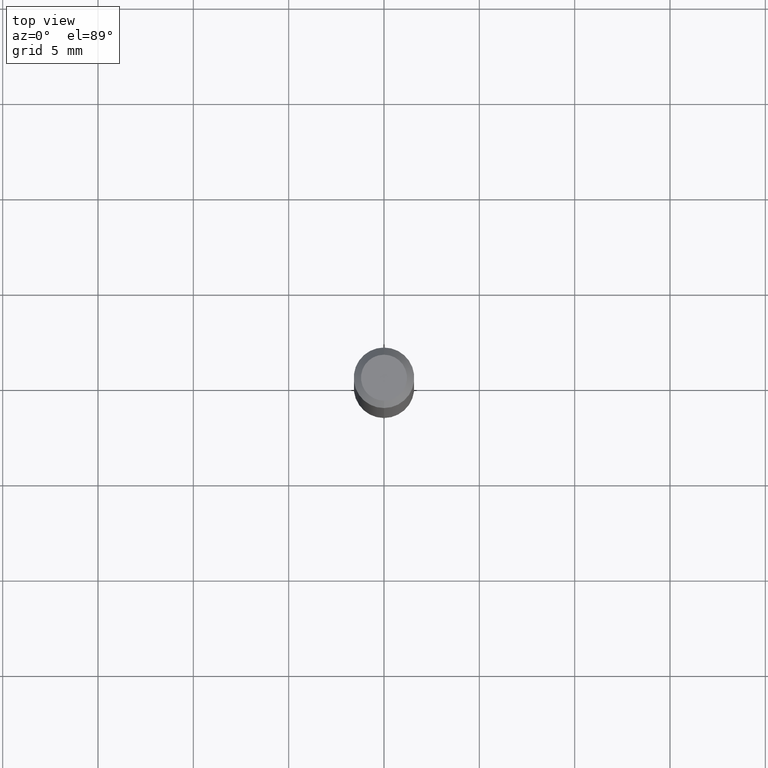
[diagram: clean part render]
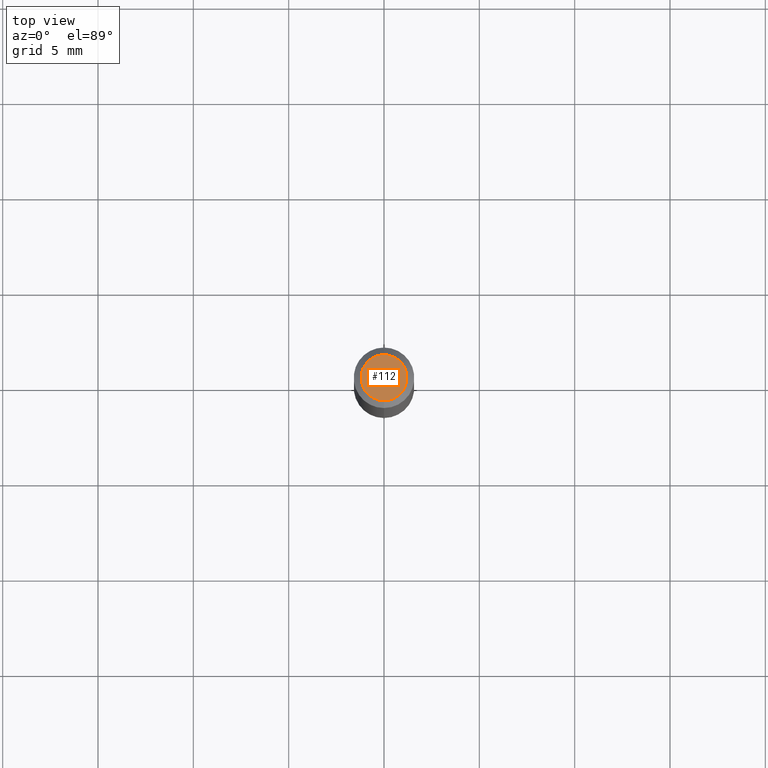
[diagram: same view with one face highlighted and labeled with its STEP entity id]
A machine part, top view. The second image highlights one B-rep face of the part: STEP entity #112.
In plain terms, the highlighted planar face has unit normal (0, -0, -1).
Its self-contained STEP definition (entity closure, byte-faithful):
#2 = ORIENTED_EDGE ( 'NONE', *, *, #459, .T. ) ;
#4 = DIRECTION ( 'NONE',  ( 6.982962677686265922E-15, 1.000000000000000000, -3.491477318471451219E-15 ) ) ;
#9 = ORIENTED_EDGE ( 'NONE', *, *, #59, .T. ) ;
#24 = DIRECTION ( 'NONE',  ( -2.445471613595686060E-29, 3.491477318471450825E-15, 1.000000000000000000 ) ) ;
#44 = CARTESIAN_POINT ( 'NONE',  ( 3.316907271900976096E-16, 0.04749999999999999362, -3.299187419673015324E-16 ) ) ;
#59 = EDGE_CURVE ( 'NONE', #313, #203, #90, .T. ) ;
#90 = CIRCLE ( 'NONE', #507, 0.04749999999999999362 ) ;
#112 = ADVANCED_FACE ( 'NONE', ( #243 ), #202, .F. ) ;
#123 = AXIS2_PLACEMENT_3D ( 'NONE', #44, #387, #4 ) ;
#135 = CARTESIAN_POINT ( 'NONE',  ( -3.773273898774340269E-16, -0.04749999999999999362, -1.623019660524213164E-16 ) ) ;
#140 = EDGE_LOOP ( 'NONE', ( #9, #2 ) ) ;
#148 = AXIS2_PLACEMENT_3D ( 'NONE', #262, #24, #490 ) ;
#202 = PLANE ( 'NONE',  #123 ) ;
#203 = VERTEX_POINT ( 'NONE', #135 ) ;
#240 = DIRECTION ( 'NONE',  ( -2.445471613595686060E-29, 3.491477318471450825E-15, 1.000000000000000000 ) ) ;
#243 = FACE_OUTER_BOUND ( 'NONE', #140, .T. ) ;
#262 = CARTESIAN_POINT ( 'NONE',  ( 8.024745127241350600E-45, -1.145718291821880628E-30, -3.281471386798151833E-16 ) ) ;
#313 = VERTEX_POINT ( 'NONE', #360 ) ;
#360 = CARTESIAN_POINT ( 'NONE',  ( 3.840629472727447874E-16, 0.04749999999999999362, -4.939923113072091241E-16 ) ) ;
#384 = CIRCLE ( 'NONE', #148, 0.04749999999999999362 ) ;
#387 = DIRECTION ( 'NONE',  ( 2.445471613595685500E-29, -3.491477318471451219E-15, -1.000000000000000000 ) ) ;
#423 = DIRECTION ( 'NONE',  ( -6.982962677686266711E-15, -1.000000000000000000, 3.491477318471450825E-15 ) ) ;
#434 = CARTESIAN_POINT ( 'NONE',  ( 8.024745127241350600E-45, -1.145718291821880628E-30, -3.281471386798151833E-16 ) ) ;
#459 = EDGE_CURVE ( 'NONE', #203, #313, #384, .T. ) ;
#490 = DIRECTION ( 'NONE',  ( -6.982962677686266711E-15, -1.000000000000000000, 3.491477318471450825E-15 ) ) ;
#507 = AXIS2_PLACEMENT_3D ( 'NONE', #434, #240, #423 ) ;